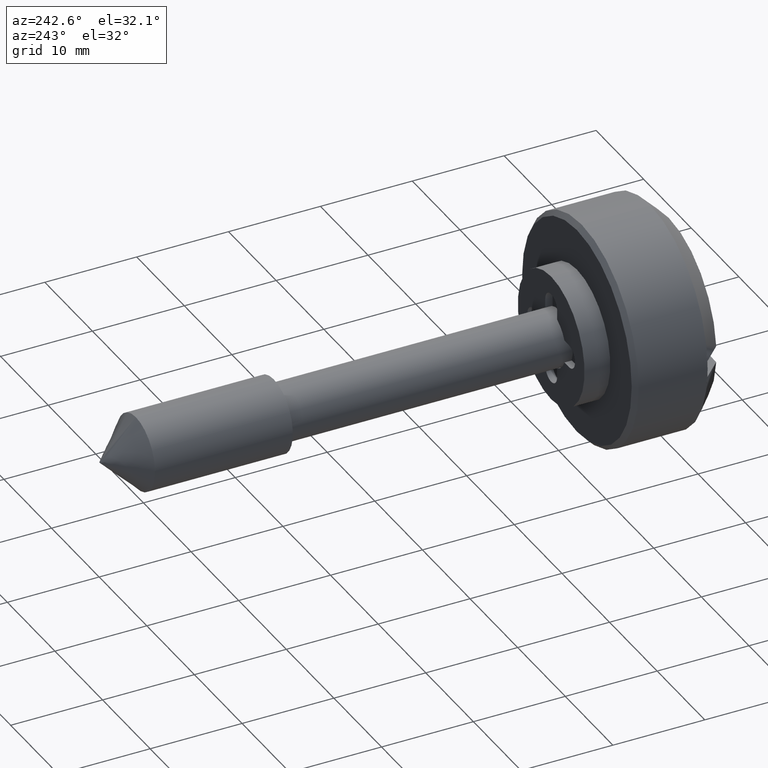
[diagram: clean part render]
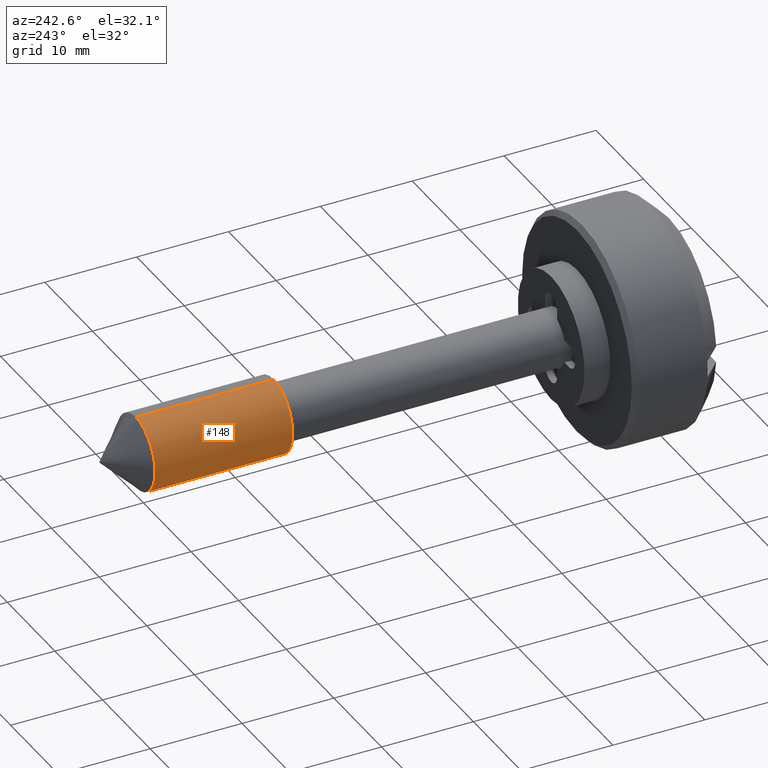
[diagram: same view with one face highlighted and labeled with its STEP entity id]
A machine part, auxiliary view. The second image highlights one B-rep face of the part: STEP entity #148.
In plain terms, the highlighted cylindrical surface (partial cylindrical patch) has radius 4 mm, axis along (0, 1, 0).
Its self-contained STEP definition (entity closure, byte-faithful):
#148=ADVANCED_FACE('',(#520),#519,.T.);
#519=CYLINDRICAL_SURFACE('',#779,4.00000000000E+00);
#520=FACE_OUTER_BOUND('',#780,.T.);
#776=CARTESIAN_POINT('',(1.50000000000E+01,0.00000000000E+00,0.00000000000E+00));
#777=DIRECTION('',(1.00000000000E+00,-0.00000000000E+00,-0.00000000000E+00));
#778=DIRECTION('',(-0.00000000000E+00,-0.00000000000E+00,-1.00000000000E+00));
#779=AXIS2_PLACEMENT_3D('',#776,#777,#778);
#780=EDGE_LOOP('',(#1000,#1001,#1002,#1003));
#1000=ORIENTED_EDGE('',*,*,#1122,.T.);
#1001=ORIENTED_EDGE('',*,*,#1123,.F.);
#1002=ORIENTED_EDGE('',*,*,#1095,.F.);
#1003=ORIENTED_EDGE('',*,*,#1124,.T.);
#1095=EDGE_CURVE('',#1567,#1568,#1569,.T.);
#1122=EDGE_CURVE('',#1744,#1745,#1746,.T.);
#1123=EDGE_CURVE('',#1568,#1745,#1752,.T.);
#1124=EDGE_CURVE('',#1567,#1744,#1758,.T.);
#1567=VERTEX_POINT('',#2065);
#1568=VERTEX_POINT('',#2066);
#1569=CIRCLE('',#2070,4.00000000000E+00);
#1744=VERTEX_POINT('',#2169);
#1745=VERTEX_POINT('',#2170);
#1746=CIRCLE('',#2174,4.00000000000E+00);
#1752=(BOUNDED_CURVE() B_SPLINE_CURVE(1,(#2175,#2176),.UNSPECIFIED.,.F.,.F.) B_SPLINE_CURVE_WITH_KNOTS((2,2),(8.33333328360E-02,9.16666666871E-01),.UNSPECIFIED.) CURVE() GEOMETRIC_REPRESENTATION_ITEM() RATIONAL_B_SPLINE_CURVE((1.00000000000E+00,1.00000000000E+00)) REPRESENTATION_ITEM('') );
#1758=(BOUNDED_CURVE() B_SPLINE_CURVE(1,(#2177,#2178),.UNSPECIFIED.,.F.,.F.) B_SPLINE_CURVE_WITH_KNOTS((2,2),(8.33333333333E-02,9.16666666667E-01),.UNSPECIFIED.) CURVE() GEOMETRIC_REPRESENTATION_ITEM() RATIONAL_B_SPLINE_CURVE((7.50000000000E-01,7.50000000000E-01)) REPRESENTATION_ITEM('') );
#2065=CARTESIAN_POINT('',(3.10000000000E+01,0.00000000000E+00,4.00000000000E+00));
#2066=CARTESIAN_POINT('',(3.10000000000E+01,4.44089209850E-16,-4.00000000000E+00));
#2067=CARTESIAN_POINT('',(3.10000000000E+01,0.00000000000E+00,0.00000000000E+00));
#2068=DIRECTION('',(-1.00000000000E+00,0.00000000000E+00,0.00000000000E+00));
#2069=DIRECTION('',(0.00000000000E+00,-1.22460635382E-16,1.00000000000E+00));
#2070=AXIS2_PLACEMENT_3D('',#2067,#2068,#2069);
#2169=CARTESIAN_POINT('',(4.60000000000E+01,0.00000000000E+00,4.00000000000E+00));
#2170=CARTESIAN_POINT('',(4.60000000000E+01,4.44089209850E-16,-4.00000000000E+00));
#2171=CARTESIAN_POINT('',(4.60000000000E+01,0.00000000000E+00,0.00000000000E+00));
#2172=DIRECTION('',(-1.00000000000E+00,0.00000000000E+00,0.00000000000E+00));
#2173=DIRECTION('',(0.00000000000E+00,-1.22460635382E-16,1.00000000000E+00));
#2174=AXIS2_PLACEMENT_3D('',#2171,#2172,#2173);
#2175=CARTESIAN_POINT('',(3.09999999910E+01,0.00000000000E+00,-4.00000000000E+00));
#2176=CARTESIAN_POINT('',(4.60000000037E+01,0.00000000000E+00,-4.00000000000E+00));
#2177=CARTESIAN_POINT('',(3.10000000000E+01,-1.48029736617E-16,4.00000000000E+00));
#2178=CARTESIAN_POINT('',(4.60000000000E+01,-1.48029736617E-16,4.00000000000E+00));